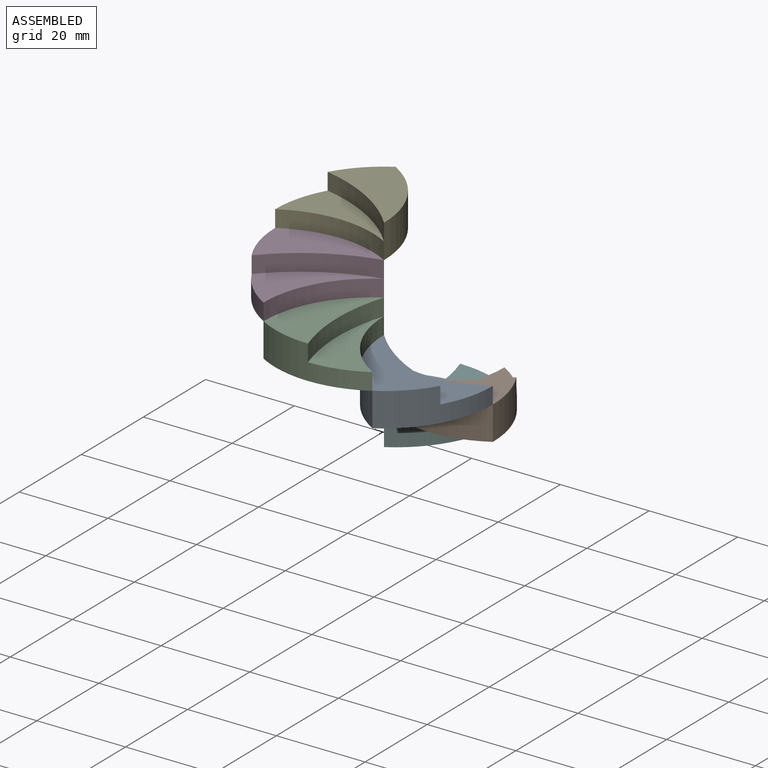
[diagram: assembled view]
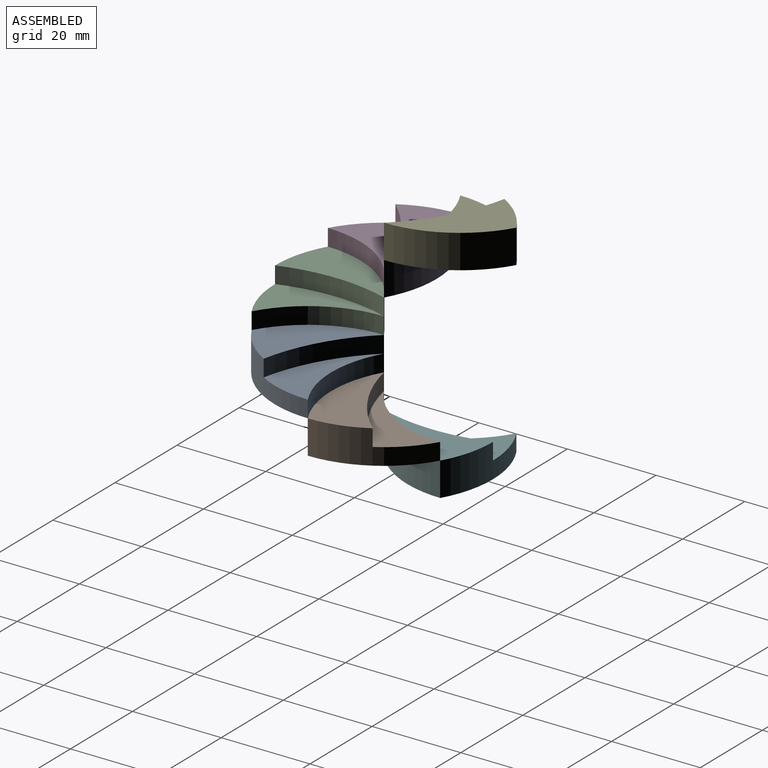
[diagram: assembled view, second angle]
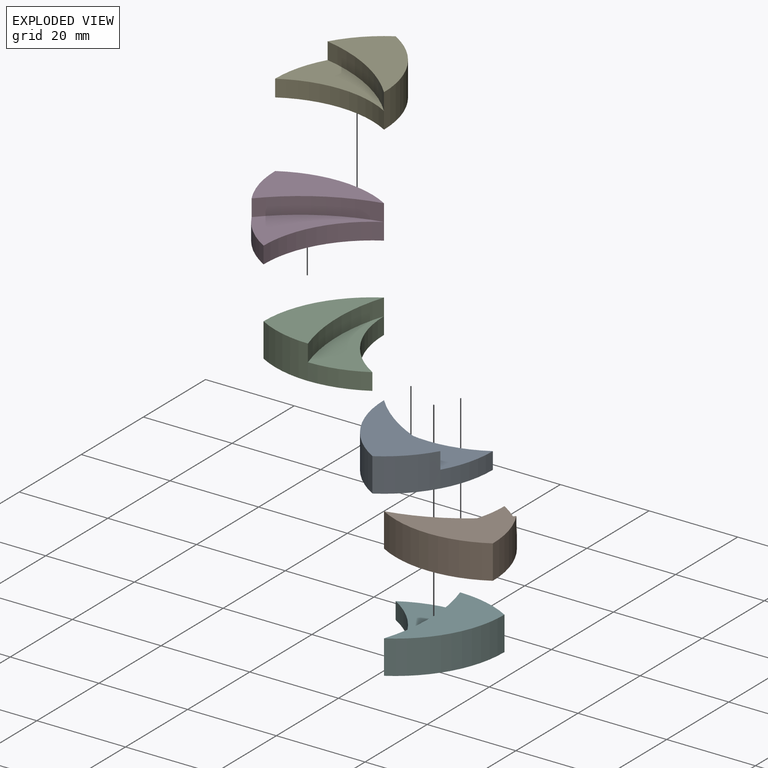
[diagram: exploded view]
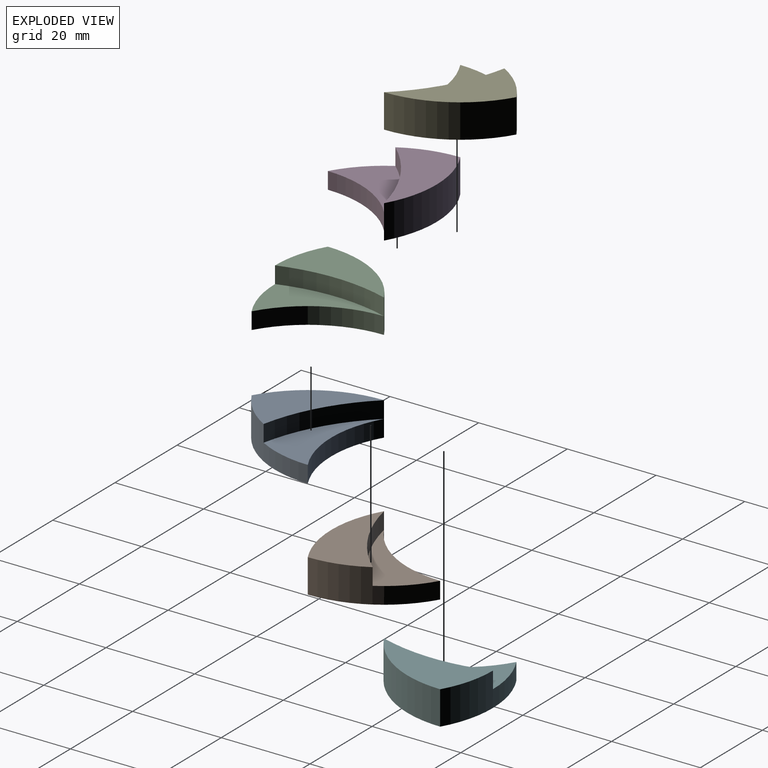
[diagram: exploded view, second angle]
ASSEMBLY  parts=6 mates=5
PART A: 7 faces, bbox 24.5x21.3x7.6 mm
  f0: cylinder r=24.55mm len=21.26mm, axis (0,0,-1), area 195.9mm2, adj f1,f2,f3,f4,f5
  f1: cylinder r=24.55mm len=21.26mm, axis (0,0,-1), area 147mm2, adj f0,f2,f3,f4,f5,f6
  f2: cylinder r=39.48mm len=21.28mm, axis (0,0,-1), area 95.1mm2, adj f0,f1,f3,f6
  f3: plane 21.28x21.26mm, normal (0,0,1), area 180.6mm2, adj f0,f1,f2
  f4: plane 24.55x21.26mm, normal (0,0,-1), area 315.5mm2, adj f0,f1,f5
  f5: cylinder r=24.55mm len=24.55mm, axis (0,0,-1), area 97.9mm2, adj f0,f1,f4,f6
  f6: plane 24.55x12.24mm, normal (0,0,1), area 134.9mm2, adj f1,f2,f5
PART B: same geometry as A
PART C: same geometry as A
PART D: same geometry as A
PART E: same geometry as A
PART F: same geometry as A
PLACE A rot(axis=(0,0,1),180deg) t=(47.35,10.66,-20.03)mm
PLACE B rot(axis=(0,0,-1),120deg) t=(35.08,31.92,-27.65)mm
PLACE C rot(axis=(0,0,1),120deg) t=(35.08,-10.6,-12.41)mm
PLACE D rot(axis=(0,0,1),60deg) t=(10.53,-10.6,-4.79)mm
PLACE E t=(-1.74,10.66,2.83)mm fixed
PLACE F rot(axis=(0,0,-1),60deg) t=(10.53,31.92,-35.27)mm
MATE cylindrical A.f1 <-> C.f1  axis (0,0,1) through (22.81,10.66,-12.41)mm
MATE cylindrical F.f1 <-> B.f1  axis (0,0,1) through (22.81,10.66,-27.65)mm
MATE cylindrical C.f1 <-> D.f1  axis (0,0,1) through (22.81,10.66,-4.79)mm
MATE cylindrical D.f1 <-> E.f1  axis (0,0,1) through (22.81,10.66,2.83)mm
MATE cylindrical B.f1 <-> A.f1  axis (0,0,1) through (22.81,10.66,-20.03)mm
